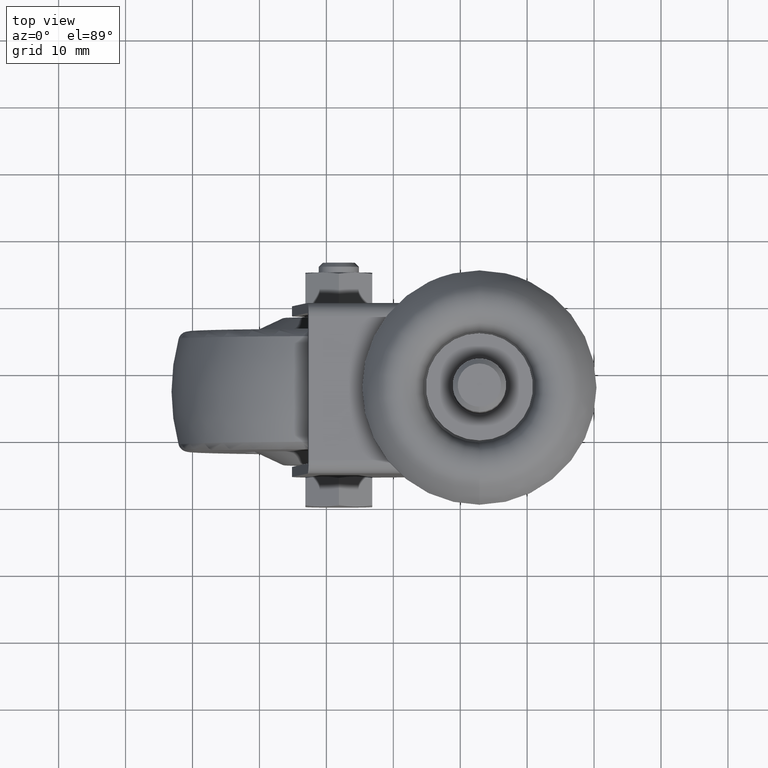
[diagram: clean part render]
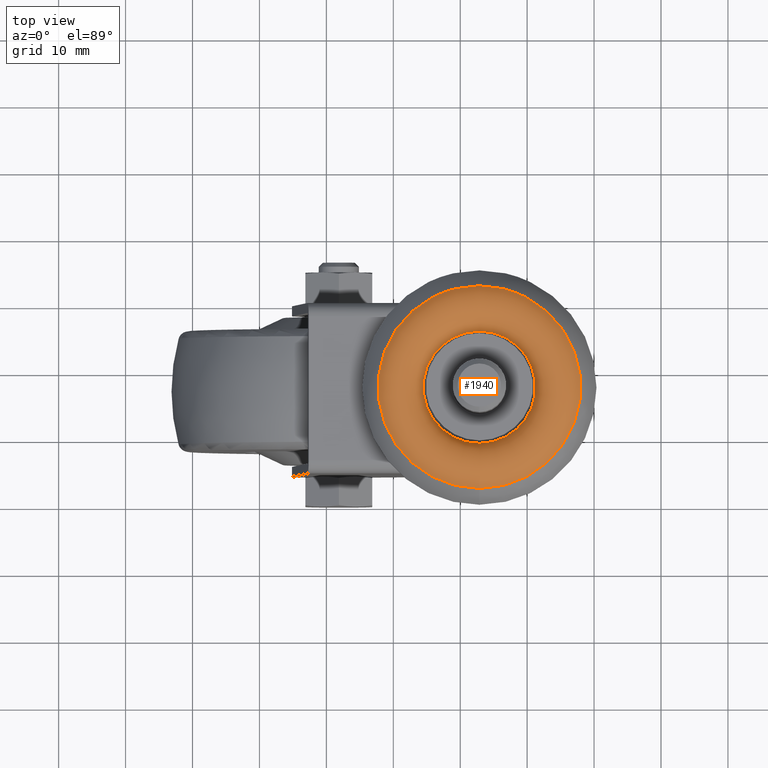
[diagram: same view with one face highlighted and labeled with its STEP entity id]
A machine part, top view. The second image highlights one B-rep face of the part: STEP entity #1940.
In plain terms, the highlighted toroidal blend (fillet) surface has major radius 12.03 mm and minor (blend) radius 3.76 mm.
Its self-contained STEP definition (entity closure, byte-faithful):
#107=TOROIDAL_SURFACE('',#2356,12.03,3.76);
#442=FACE_OUTER_BOUND('',#588,.T.);
#588=EDGE_LOOP('',(#1607,#1608,#1609,#1610));
#727=CIRCLE('',#2354,8.38702257873664);
#729=CIRCLE('',#2357,15.1399850508893);
#730=CIRCLE('',#2358,3.76);
#947=VERTEX_POINT('',#3668);
#948=VERTEX_POINT('',#3672);
#1177=EDGE_CURVE('',#947,#947,#727,.T.);
#1179=EDGE_CURVE('',#948,#948,#729,.T.);
#1180=EDGE_CURVE('',#948,#947,#730,.T.);
#1607=ORIENTED_EDGE('',*,*,#1179,.F.);
#1608=ORIENTED_EDGE('',*,*,#1180,.T.);
#1609=ORIENTED_EDGE('',*,*,#1177,.T.);
#1610=ORIENTED_EDGE('',*,*,#1180,.F.);
#1940=ADVANCED_FACE('',(#442),#107,.T.);
#2354=AXIS2_PLACEMENT_3D('',#3669,#2845,#2846);
#2356=AXIS2_PLACEMENT_3D('',#3671,#2849,#2850);
#2357=AXIS2_PLACEMENT_3D('',#3673,#2851,#2852);
#2358=AXIS2_PLACEMENT_3D('',#3674,#2853,#2854);
#2845=DIRECTION('center_axis',(0.,-1.,0.));
#2846=DIRECTION('ref_axis',(0.,0.,-1.));
#2849=DIRECTION('center_axis',(0.,-1.,0.));
#2850=DIRECTION('ref_axis',(0.,0.,-1.));
#2851=DIRECTION('center_axis',(0.,-1.,0.));
#2852=DIRECTION('ref_axis',(0.,0.,-1.));
#2853=DIRECTION('center_axis',(-1.,0.,0.));
#2854=DIRECTION('ref_axis',(0.,0.,1.));
#3668=CARTESIAN_POINT('',(21.,38.1707607147733,8.38702257873664));
#3669=CARTESIAN_POINT('Origin',(21.,38.1707607147733,0.));
#3671=CARTESIAN_POINT('Origin',(21.,37.24,0.));
#3672=CARTESIAN_POINT('',(21.,39.353194970476,15.1399850508893));
#3673=CARTESIAN_POINT('Origin',(21.,39.353194970476,0.));
#3674=CARTESIAN_POINT('Origin',(21.,37.24,12.03));